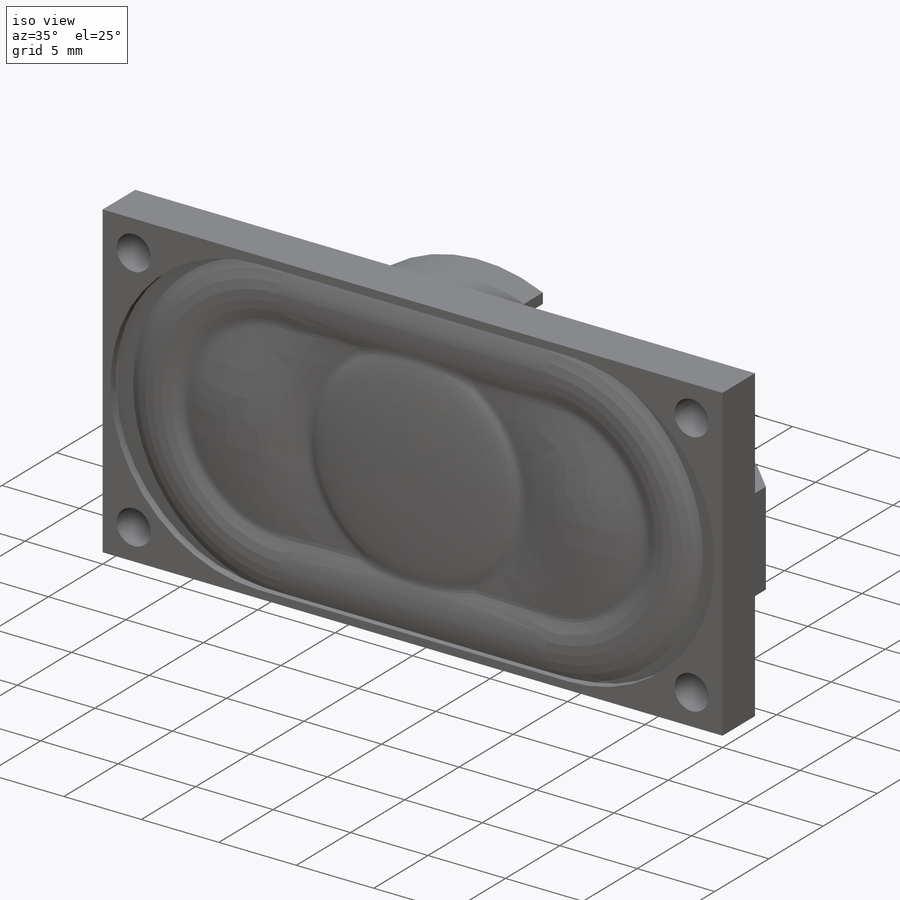
[diagram: iso view]
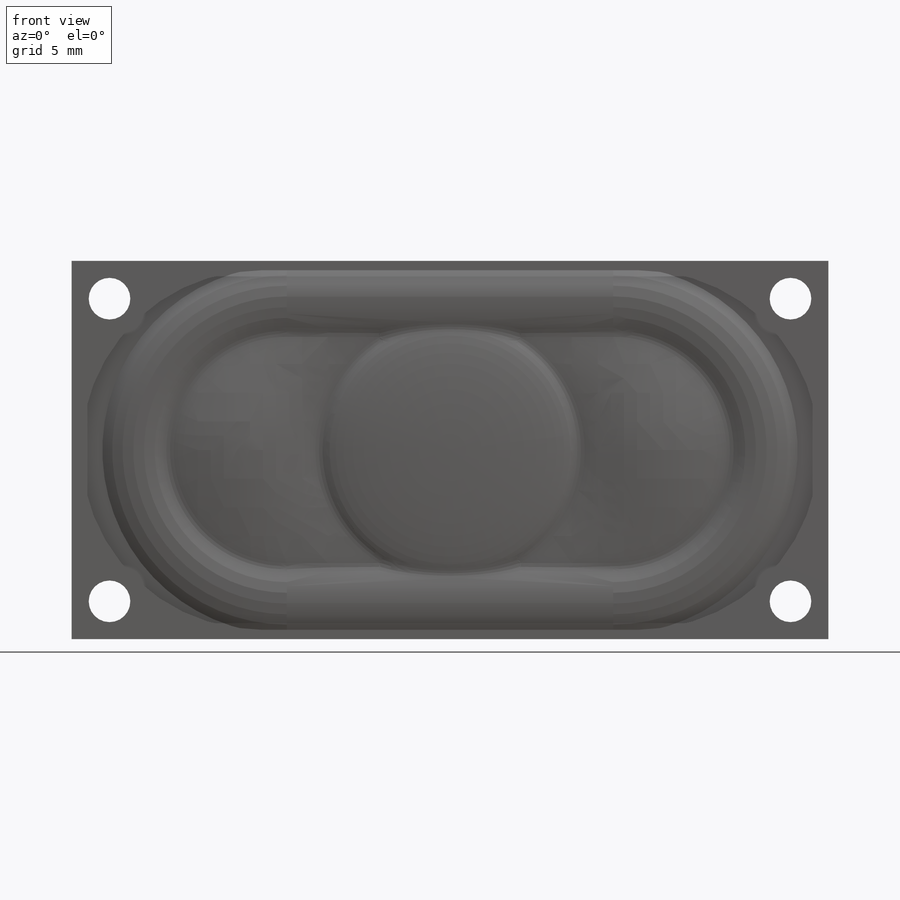
[diagram: front view]
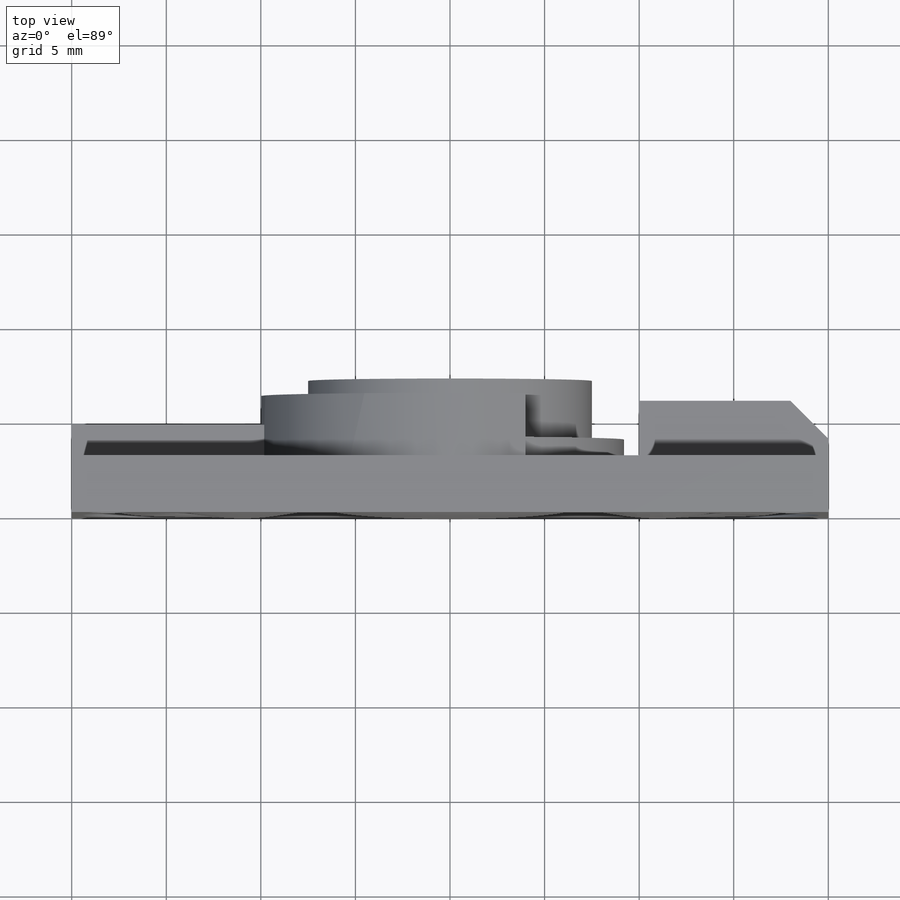
[diagram: top view]
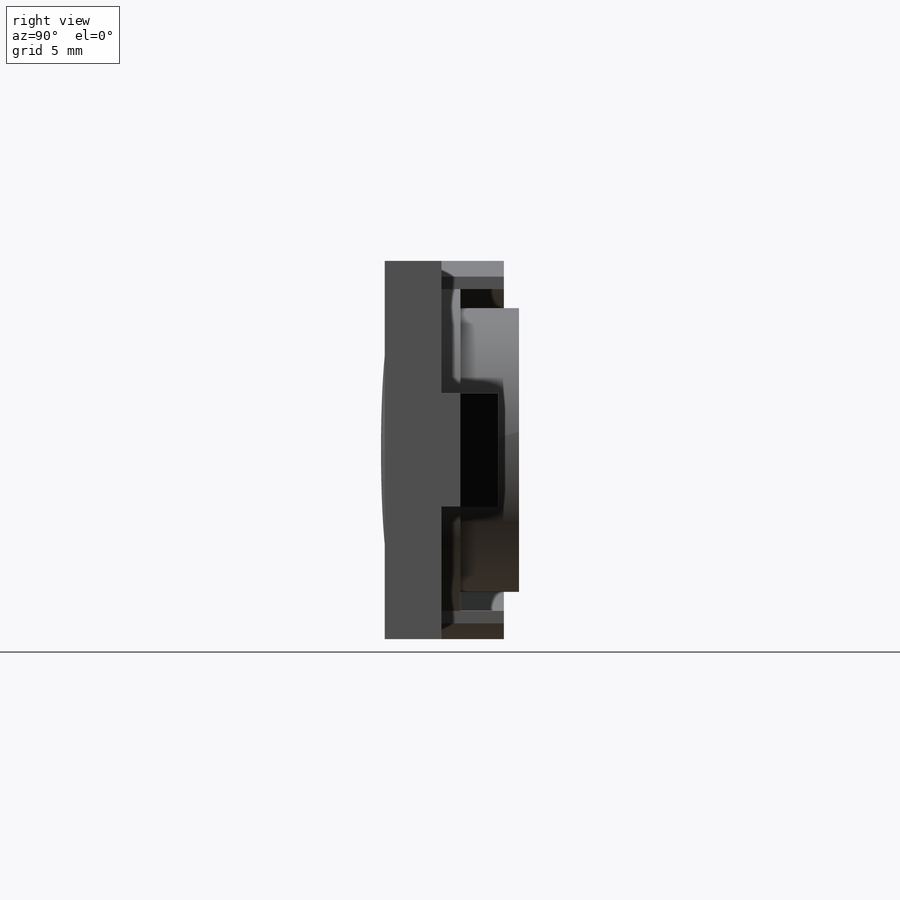
[diagram: right view]
SOLIDWORKS PART (.sldprt)
format: sldprt  version: not decoded by parser v0  size: 573,952 bytes
history: native  units: mm
features: sketch x17, extrude x8, cut_extrude x2, dome x2, material x1, hole x1, chamfer x1, sweep x1, mirror x1, boolean_combine x1, fillet x1 (+12 scaffold rows collapsed)
feature tree (48):
  scaffold x12  (default folders/planes/origin — collapsed)
  material  "Material <not specified>"
  sketch  "Sketch1"  dims[c1.D5=15.0mm c1.D1=~24.236197mm c1.D2=~80.622451mm c2.D1=40.0mm c2.D2=20.0mm c2.D3=~17.601522mm c2.D4=~35.203044mm c3.D3=36.0mm c3.D4=16.0mm c3.D6=24.0mm]
  sketch  "Sketch11"  dims[c1.D1=~24.876297mm c1.D2=~3.889017mm c2.D1=3.0mm c2.D2=6.3mm c2.D3=7.1mm c2.D4=4.0mm]
  sketch  "Sketch2"  dims[D1=20.0mm D2=40.0mm]
  extrude  "Boss-Extrude1"  [1 undecoded]
  sketch  "Sketch6"  dims[c1.D1=19.0mm c1.D2=0.5mm c2.D1=2.5mm c2.D2=17.0mm]
  cut_extrude  "Cut-Extrude1"  [1 undecoded]
  sketch  "Sketch7"  dims[D1=19.0mm D2=0.5mm]
  cut_extrude  "Cut-Extrude2"  Depth=0.5mm
  hole  "M2 Clearance Hole1"  Diameter=2.2mm Depth=8.5mm
  sketch  "Sketch9"
  sketch  "Sketch8"  dims[hole-wizard template sketch: 47 standard entries collapsed; hole parameters kept: c15.Hole Depth=8.5mm c15.D3=~14.816244mm c15.Drill Angle=180.0deg]
  sketch  "Sketch3"  dims[D1=0.6mm]
  extrude  "Boss-Extrude2"  [1 undecoded]
  sketch  "Sketch4"  dims[D1=0.2mm]
  extrude  "Boss-Extrude3"  [1 undecoded]
  sketch  "Sketch17"  dims[D1=3.75mm D2=6.0mm D3=10.0mm]
  sketch  "Sketch18"
  extrude  "Boss-Extrude9"  Depth=4.75mm
  sketch  "Sketch19"
  extrude  "Boss-Extrude10"  Depth=6mm
  chamfer  "Chamfer1"  Distance=2mm Angle=45deg
  sketch  "Sketch5"
  extrude  "Boss-Extrude4"  [1 undecoded]
  sketch  "Sketch12"  dims[c1.D2=7.875mm c1.D1=15.75mm c2.D2=17.25mm]
  sketch  "Sketch14"  dims[D1=4.0mm]
  sweep  "Sweep1"
  sketch  "Sketch15"  dims[D1=~13.427477mm]
  extrude  "Boss-Extrude6"  Depth=0.1mm
  dome  "Dome1"
  sketch  "Sketch16"  dims[D1=0.5mm]
  extrude  "Boss-Extrude7"  Depth=0.1mm
  dome  "Dome2"
  mirror  "Mirror1"
  boolean_combine  "Combine2"
  fillet  "Fillet1"  Radius=1mm
decode coverage: 21 of 35 modeling features carry decoded parameters
note: ~ marks probable driven/reference dimensions
note: 5 parameter values undecoded
summary: no parameter record found for 5 features
note: suppression state not decoded; provenance and decode notes live in map.json
